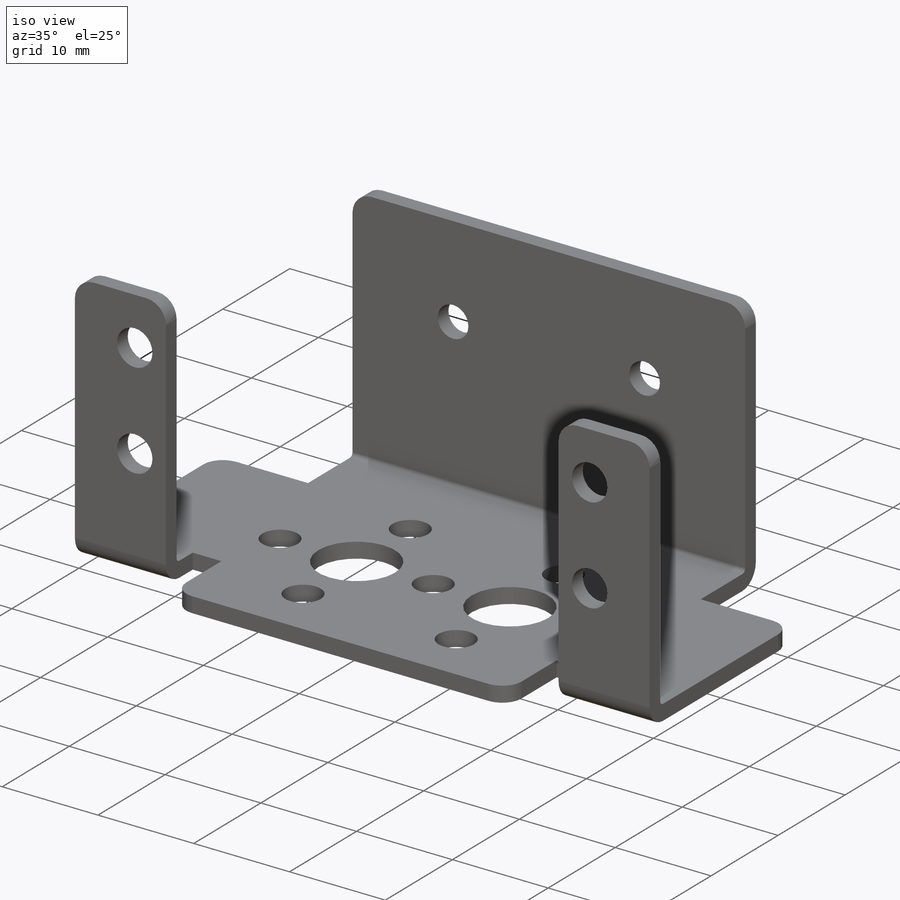
[diagram: iso view]
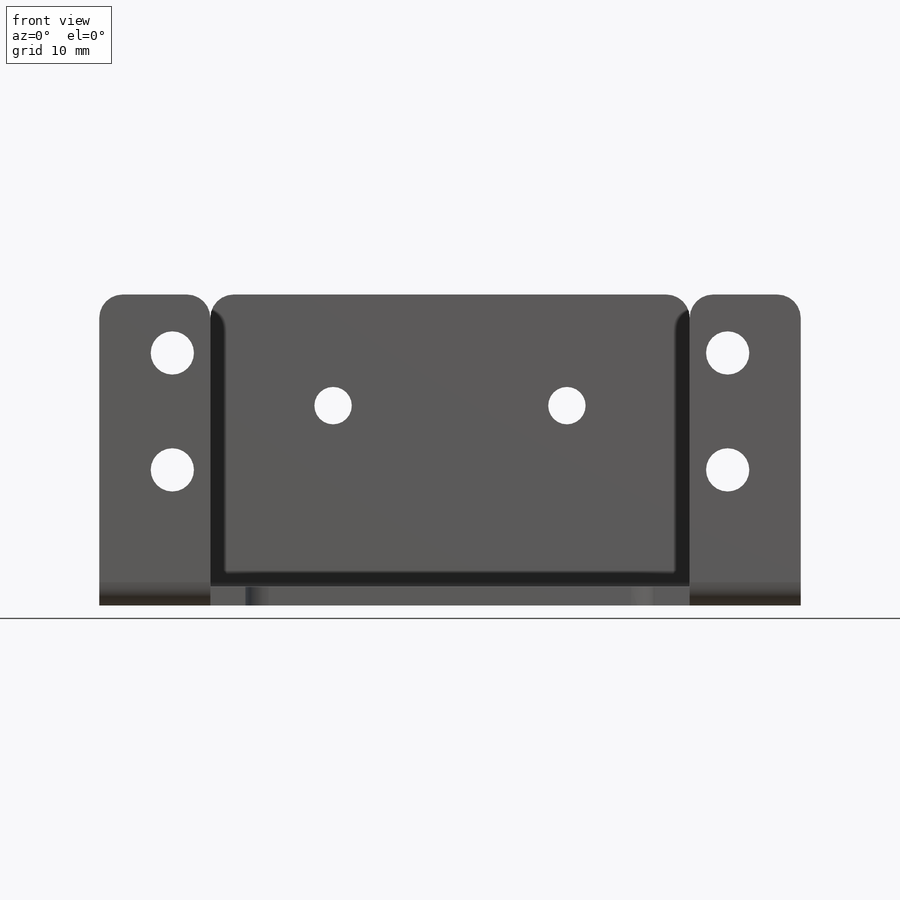
[diagram: front view]
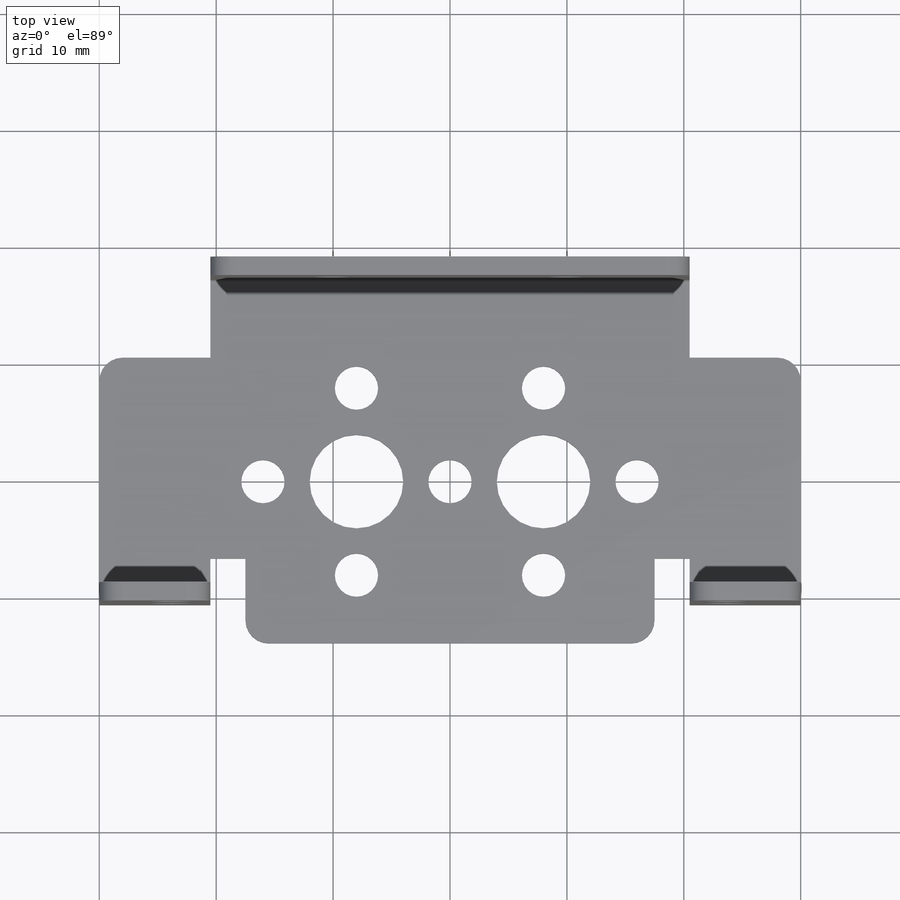
[diagram: top view]
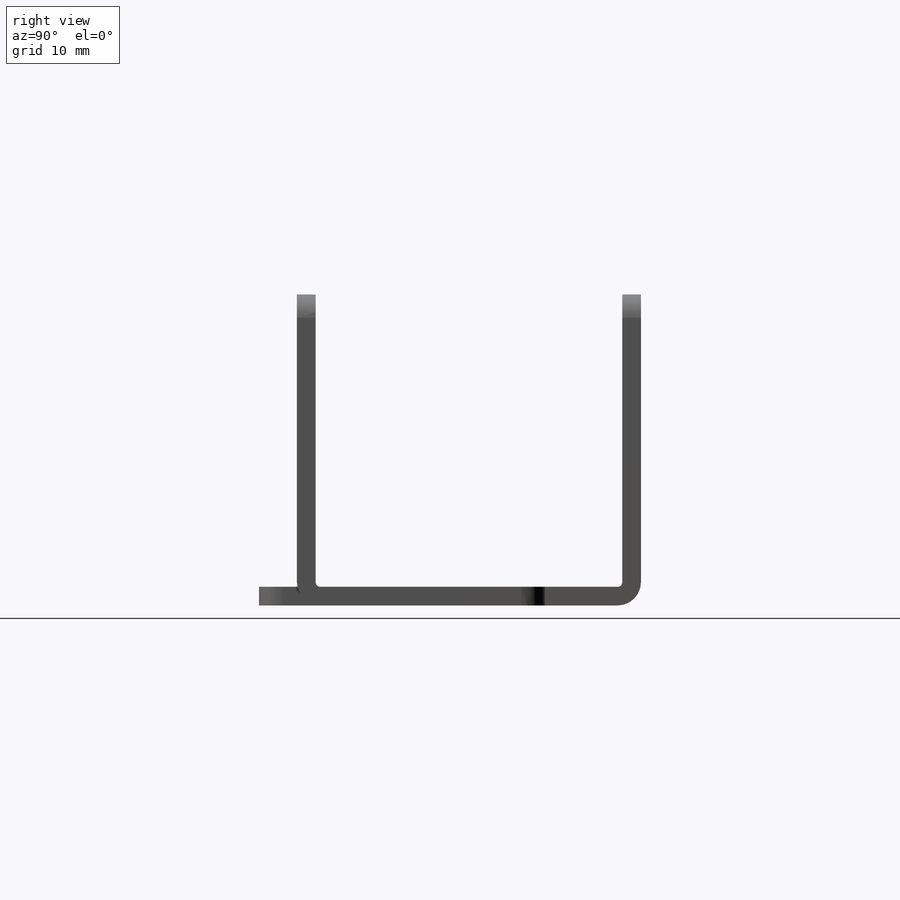
[diagram: right view]
SOLIDWORKS PART (.sldprt)
format: sldprt  version: not decoded by parser v0  size: 480,768 bytes
history: native  units: mm
features: sketch x9, cut_extrude x4, extrude x2, fillet x2, pattern_circular x2, material x1, hole x1 (+13 scaffold rows collapsed)
feature tree (34):
  scaffold x13  (default folders/planes/origin — collapsed)
  material  "5052 Alloy"
  sketch  "Sketch1"  dims[c1.D1=21.2mm c1.D2=9.5mm c1.D3=41.0mm c1.D4=9.5mm c1.D5=21.2mm c1.D6=9.5mm c1.D7=3.0mm c1.D8=35.0mm c1.D9=3.0mm c1.D10=~4.011974mm c1.D11=~29.430694mm c1.D12=~3.238875mm c2.D4=~6.588026mm c2.D5=~13.838875mm]
  extrude  "Extrude1"  Depth=1.6mm
  sketch  "Sketch2"  dims[D1=1.6mm D2=1.6mm D3=1.6mm]
  extrude  "Extrude2"  Depth=25mm
  fillet  "Fillet2"  Radius=0.4mm
  fillet  "Fillet3"  Radius=2mm
  sketch  "Sketch3"  dims[c1.D1=3.7mm c1.D2=3.7mm c1.D3=3.7mm c1.D4=3.7mm c1.D5=11.6mm c1.D6=11.6mm c1.D7=10.0mm c1.D8=10.0mm c1.D9=23.75mm c1.D10=23.75mm c2.D1=23.75mm]
  hole  "Ø3.7 (3.7) Diameter Hole1"  Diameter=3.7mm Depth=29.430694mm
  sketch  "Sketch7"
  sketch  "Sketch6"  dims[hole-wizard template sketch: 60 standard entries collapsed; hole parameters kept: c18.Thru Hole Depth=~29.430694mm]
  sketch  "Sketch4"  dims[D2=3.2mm D1=10.0mm D3=~17.094459mm]
  cut_extrude  "Cut-Extrude2"  [1 undecoded]
  sketch  "Sketch5"  dims[c1.D1=3.7mm c1.D2=8.0mm c1.D3=16.0mm c2.D1=22.0mm c2.D2=22.0mm c3.D1=16.0mm]
  cut_extrude  "Cut-Extrude3"  [1 undecoded]
  cut_extrude  "Cut-Extrude4"  [1 undecoded]
  sketch  "Sketch5<3>"
  pattern_circular  "CirPattern1"  Count=4 Angle=90deg
  cut_extrude  "Cut-Extrude5"  [1 undecoded]
  sketch  "Sketch5<4>"  dims[D1=10.0mm]
  pattern_circular  "CirPattern2"  Count=4 Angle=90deg
decode coverage: 14 of 20 modeling features carry decoded parameters
note: ~ marks probable driven/reference dimensions
note: 4 parameter values undecoded
summary: no parameter record found for 4 features
note: suppression state not decoded; provenance and decode notes live in map.json
